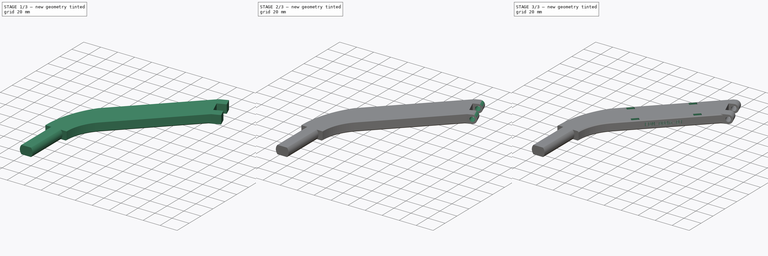
[diagram: build sequence overview — one tinted view per stage of 3, left to right]
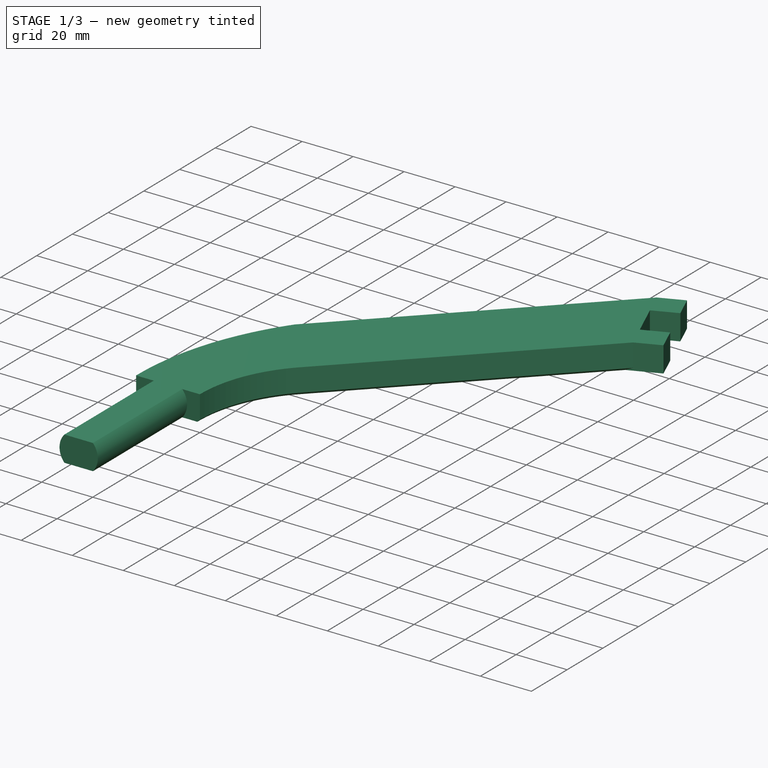
[diagram: stage 1 of 3 — iso view after this stage's code; geometry added in this stage tinted green]
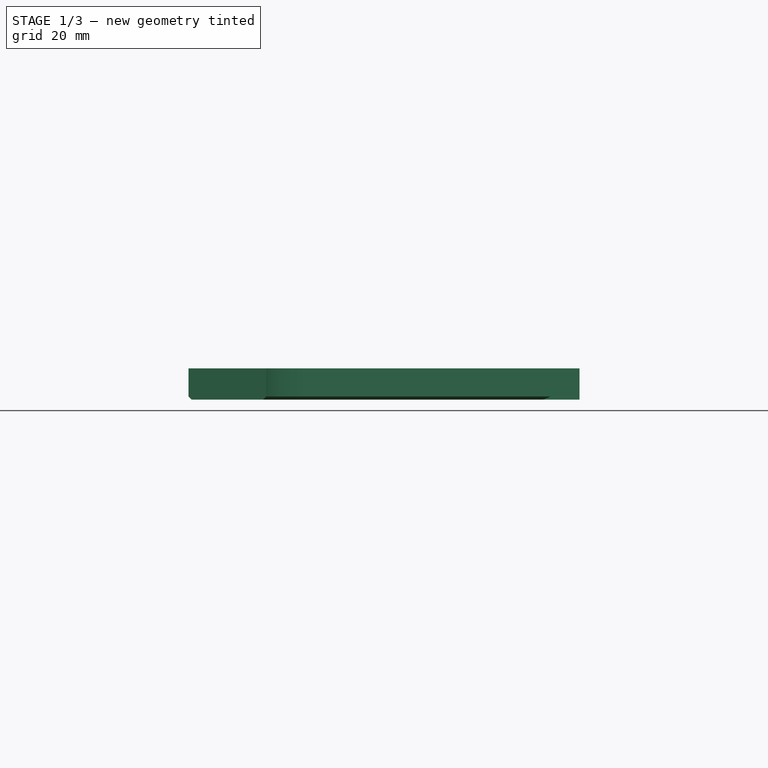
[diagram: stage 1 of 3 — front view after this stage's code; geometry added in this stage tinted green]
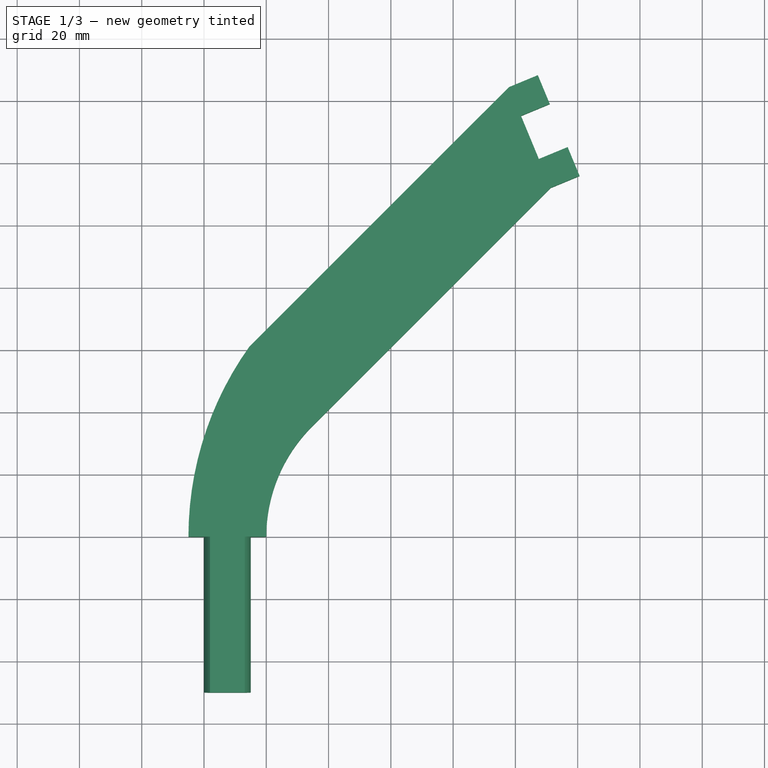
[diagram: stage 1 of 3 — top view after this stage's code; geometry added in this stage tinted green]
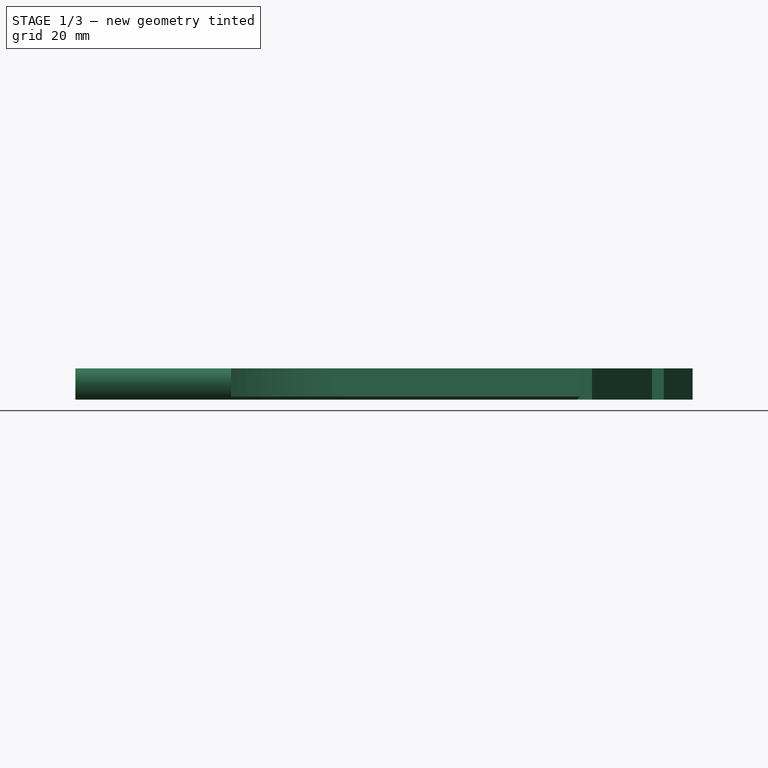
[diagram: stage 1 of 3 — right view after this stage's code; geometry added in this stage tinted green]
FCSTD DOCUMENT  (FreeCAD 0.19R24291 (Git))
Label: FDM-0046_umbilical-swivel-base
License: All rights reserved
LicenseURL: http://en.wikipedia.org/wiki/All_rights_reserved
objects: PartDesign::Plane×7, Sketcher::SketchObject×4, PartDesign::Pocket×4, PartDesign::Chamfer×2, PartDesign::Pad×1, PartDesign::Fillet×1, Part::Part2DObjectPython×1, PartDesign::Body×1
note: 29 computed .brp shape members not serialized (recipe doc carries the construction recipe); baked Part::Feature solids carry a one-line shape summary decoded from their .brp

FEATURE [Sketcher::SketchObject] Sketch
  FullyConstrained = true
  MapMode = 5
  Support = -> [XY_Plane]
  sketch-geometry (15):
    g0: LineSegment StartX=0 StartY=6.1e-15 StartZ=0 EndX=0 EndY=-50 EndZ=0
    g1: LineSegment StartX=0 StartY=-50 StartZ=0 EndX=-25 EndY=-50 EndZ=0
    g2: LineSegment StartX=-25 StartY=-50 StartZ=0 EndX=-25 EndY=1.42e-14 EndZ=0
    g3: ArcOfCircle CenterX=50 CenterY=0 CenterZ=0 NormalX=0 NormalY=0 NormalZ=1 AngleXU=0 Radius=50 StartAngle=2.3562 EndAngle=3.14159
    g4: ArcOfCircle CenterX=80 CenterY=0 CenterZ=0 NormalX=0 NormalY=0 NormalZ=1 AngleXU=0 Radius=105 StartAngle=2.52263 EndAngle=3.14159
    g5: LineSegment StartX=14.6446 StartY=35.3553 StartZ=0 EndX=91.3669 EndY=112.078 EndZ=0
    g6: LineSegment StartX=77.973 StartY=144.413 StartZ=0 EndX=-5.52075 EndY=60.9196 EndZ=0
    g7: LineSegment StartX=-25 StartY=-50 StartZ=0 EndX=77.973 EndY=144.413 EndZ=0
    g8: LineSegment StartX=77.973 StartY=144.413 StartZ=0 EndX=87.2118 EndY=148.24 EndZ=0
    g9: LineSegment StartX=100.606 StartY=115.904 StartZ=0 EndX=91.3669 EndY=112.078 EndZ=0
    g10: LineSegment StartX=91.0386 StartY=139.001 StartZ=0 EndX=81.7998 EndY=135.175 EndZ=0
    g11: LineSegment StartX=81.7998 StartY=135.175 StartZ=0 EndX=87.5401 EndY=121.316 EndZ=0
    g12: LineSegment StartX=87.5401 StartY=121.316 StartZ=0 EndX=96.7789 EndY=125.143 EndZ=0
    g13: LineSegment StartX=87.2118 StartY=148.24 StartZ=0 EndX=91.0386 EndY=139.001 EndZ=0
    g14: LineSegment StartX=96.7789 StartY=125.143 StartZ=0 EndX=100.606 EndY=115.904 EndZ=0
  constraints (45):
    c: Coincident(g-1,g0)
    c: PointOnObject(g0,g-2)
    c: Coincident(g0,g1)
    c: Horizontal(g1)
    c: Coincident(g1,g2)
    c: PointOnObject(g2,g-1)
    c: Vertical(g2)
    c: Coincident(g3,g0)
    c: Coincident(g4,g2)
    c: PointOnObject(g4,g-1)
    c: Coincident(g3,g5)
    c: Coincident(g6,g4)
    c: DistanceX(g1,g1) = 25
    c: DistanceY(g2,g2) = 50
    c: DistanceX(g0,g3) = 50
    c: PointOnObject(g3,g-1)
    c: Tangent(g3,g5)
    c: Parallel(g6,g5)
    c: DistanceX(g0,g4) = 80
    c: Coincident(g7,g1)
    c: Coincident(g6,g7)
    c: Distance(g7) = 220
    c: Angle(g-2,g5) = 2.35619
    c: Coincident(g6,g8)
    c: Coincident(g9,g5)
    c: Parallel(g8,g9)
    c: Angle(g6,g8) = 2.74889
    c: Distance(g8) = 10
    c: Equal(g8,g9)
    c: Coincident(g10,g11)
    c: Coincident(g11,g12)
    c: Parallel(g10,g8)
    c: Parallel(g12,g9)
    c: Perpendicular(g11,g12)
    c: Coincident(g8,g13)
    c: Coincident(g13,g10)
    c: Coincident(g12,g14)
    c: Coincident(g14,g9)
    c: Perpendicular(g8,g13)
    c: Perpendicular(g14,g12)
    c: PointOnObject(g12,g13)
    c: Distance(g8,g9) = 35
    c: Distance(g10) = 10
    c: Distance(g13) = 10
    c: Distance(g14) = 10
FEATURE [PartDesign::Pad] Pad
  Direction = (1,1,1)
  Length = 10
  Length2 = 100
  Profile = -> Sketch
  Type = 0
FEATURE [PartDesign::Plane] DatumPlane
  Length = 141.455
  MapMode = 5
  Placement = pos=(0,-50,0) rot=(1,0,0;1.5708rad)
  ResizeMode = 0
  Support = -> [Pad]
  Width = 65.8497
FEATURE [Sketcher::SketchObject] Sketch001
  FullyConstrained = true
  MapMode = 5
  Placement = pos=(0,-50,0) rot=(1,0,0;1.5708rad)
  Support = -> [DatumPlane]
  sketch-geometry (5):
    g0: Circle CenterX=-12.5 CenterY=5 CenterZ=0 NormalX=0 NormalY=0 NormalZ=1 AngleXU=0 Radius=25
    g1: LineSegment StartX=-18.0902 StartY=10 StartZ=0 EndX=-6.90983 EndY=10 EndZ=0
    g2: ArcOfCircle CenterX=-12.5 CenterY=5 CenterZ=0 NormalX=0 NormalY=0 NormalZ=1 AngleXU=0 Radius=7.5 StartAngle=5.55346 EndAngle=7.01291
    g3: ArcOfCircle CenterX=-12.5 CenterY=5 CenterZ=0 NormalX=0 NormalY=0 NormalZ=1 AngleXU=0 Radius=7.5 StartAngle=2.41186 EndAngle=3.87132
    g4: LineSegment StartX=-18.0902 StartY=4.4e-15 StartZ=0 EndX=-6.90983 EndY=4.4e-15 EndZ=0
  constraints (15):
    c: Horizontal(g1)
    c: Coincident(g2,g0)
    c: Coincident(g2,g1)
    c: Coincident(g3,g0)
    c: Coincident(g3,g1)
    c: DistanceY(g0,g1) = 5
    c: Diameter(g2) = 15
    c: Diameter(g3) = 15
    c: DistanceX(g0,g-1) = 12.5
    c: DistanceY(g-1,g0) = 5
    c: Diameter(g0) = 50
    c: Coincident(g4,g3)
    c: Coincident(g4,g2)
    c: Horizontal(g4)
    c: DistanceY(g2,g0) = 5
FEATURE [PartDesign::Pocket] Pocket
  BaseFeature = -> Pad
  Length = 50
  Length2 = 100
  Profile = -> Sketch001
  Type = 0
FEATURE [PartDesign::Plane] DatumPlane001
  Length = 252.722
  MapMode = 5
  Placement = pos=(126.851,52.5433,0) rot=(0.427192,0.639338,0.639338;2.33414rad)
  ResizeMode = 0
  Support = -> [Pocket]
  Width = 71.5043
FEATURE [PartDesign::Chamfer] Chamfer
  Angle = 45
  Base = -> Pocket [Edge6,Edge18,Edge19]
  BaseFeature = -> Pocket
  ChamferType = 0
  FlipDirection = false
  Size = 1
  Size2 = 1
  SupportTransform = false
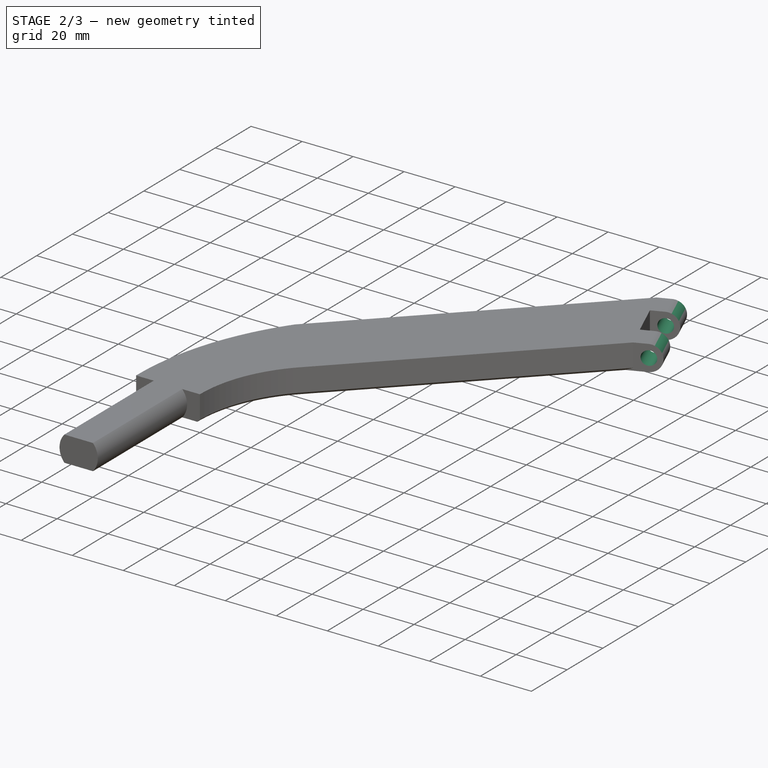
[diagram: stage 2 of 3 — iso view after this stage's code; geometry added in this stage tinted green]
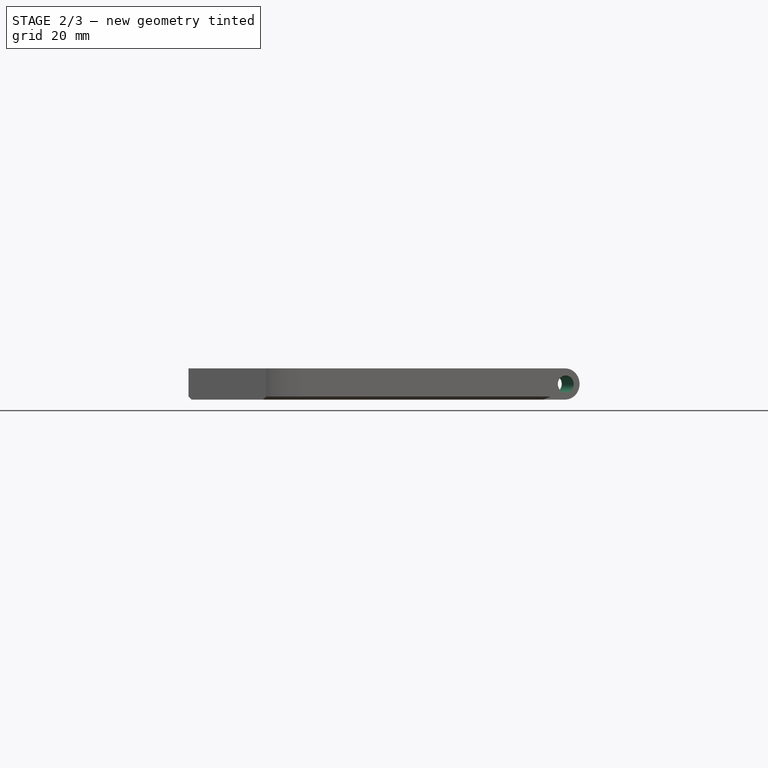
[diagram: stage 2 of 3 — front view after this stage's code; geometry added in this stage tinted green]
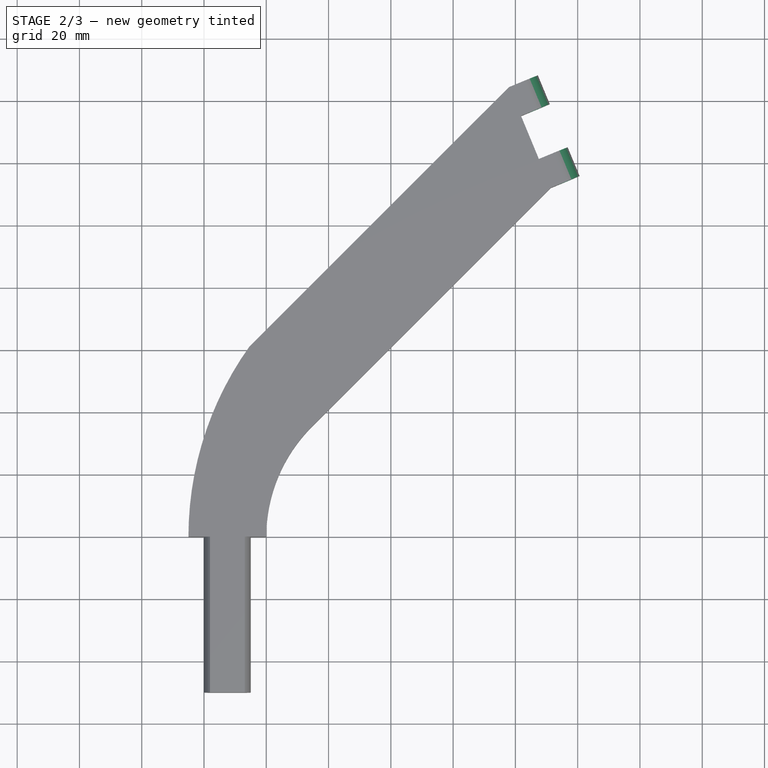
[diagram: stage 2 of 3 — top view after this stage's code; geometry added in this stage tinted green]
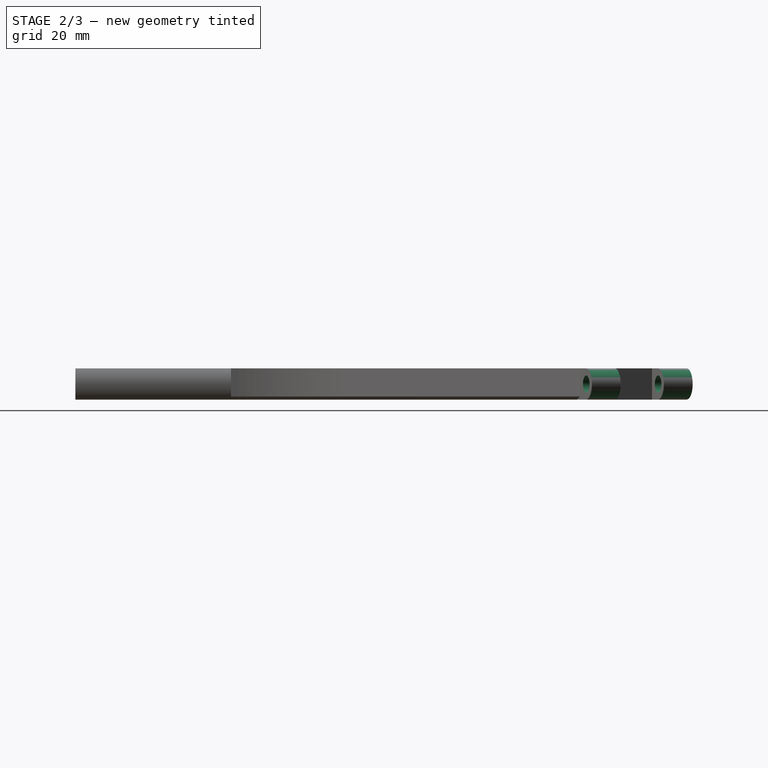
[diagram: stage 2 of 3 — right view after this stage's code; geometry added in this stage tinted green]
FEATURE [PartDesign::Fillet] Fillet
  Base = -> Chamfer [Edge12,Edge16,Edge39,Edge32]
  BaseFeature = -> Chamfer
  Radius = 4.99
  SupportTransform = false
FEATURE [PartDesign::Plane] DatumPlane002
  Length = 211.499
  MapMode = 5
  Placement = pos=(-26.245,63.3611,0) rot=(0.962637,0.19148,0.19148;1.60887rad)
  ResizeMode = 0
  Support = -> [Fillet]
  Width = 69.5912
FEATURE [Sketcher::SketchObject] Sketch002  label="M5Hole"
  FullyConstrained = true
  MapMode = 5
  Placement = pos=(-26.245,63.3611,0) rot=(0.962637,0.19148,0.19148;1.60887rad)
  Support = -> [DatumPlane002]
  sketch-geometry (1):
    g0: Circle CenterX=132.5 CenterY=5 CenterZ=0 NormalX=0 NormalY=0 NormalZ=1 AngleXU=0 Radius=2.75
  constraints (3):
    c: Diameter(g0) = 5.5
    c: DistanceY(g-1,g0) = 5
    c: DistanceX(g-1,g0) = 132.5
FEATURE [PartDesign::Pocket] Pocket001
  BaseFeature = -> Fillet
  Length = 37
  Length2 = 100
  Profile = -> Sketch002
  Type = 0
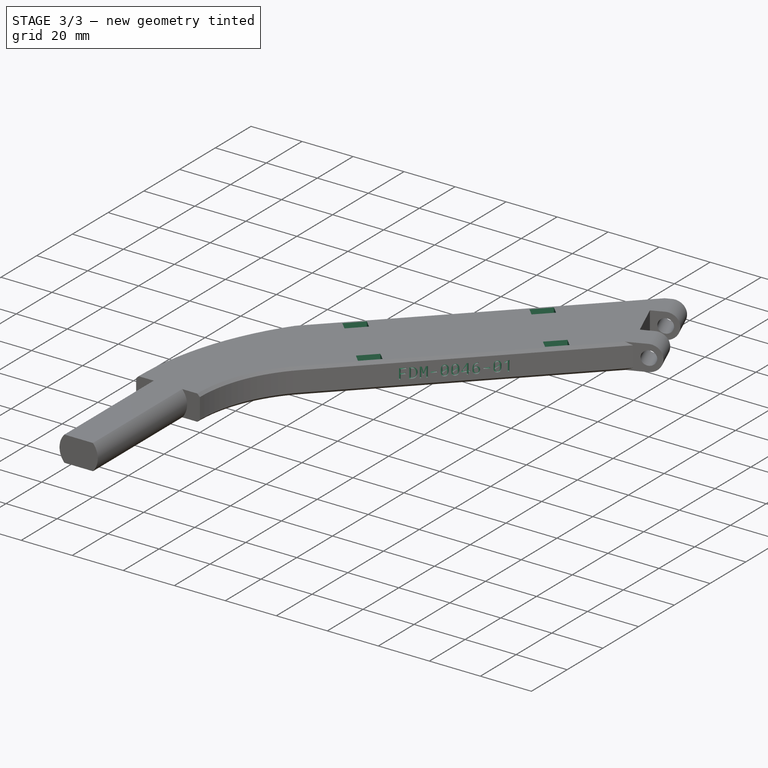
[diagram: stage 3 of 3 — iso view after this stage's code; geometry added in this stage tinted green]
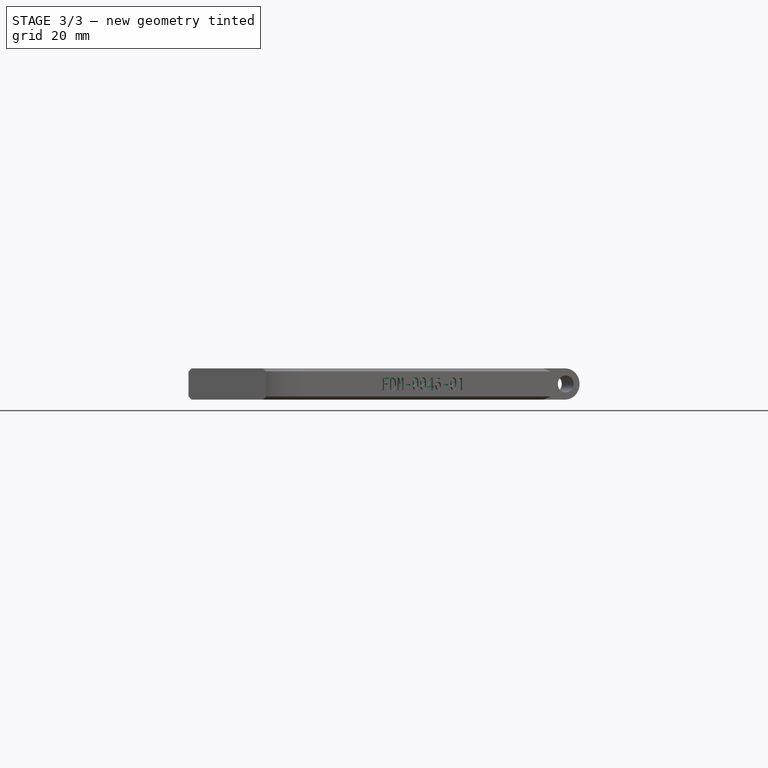
[diagram: stage 3 of 3 — front view after this stage's code; geometry added in this stage tinted green]
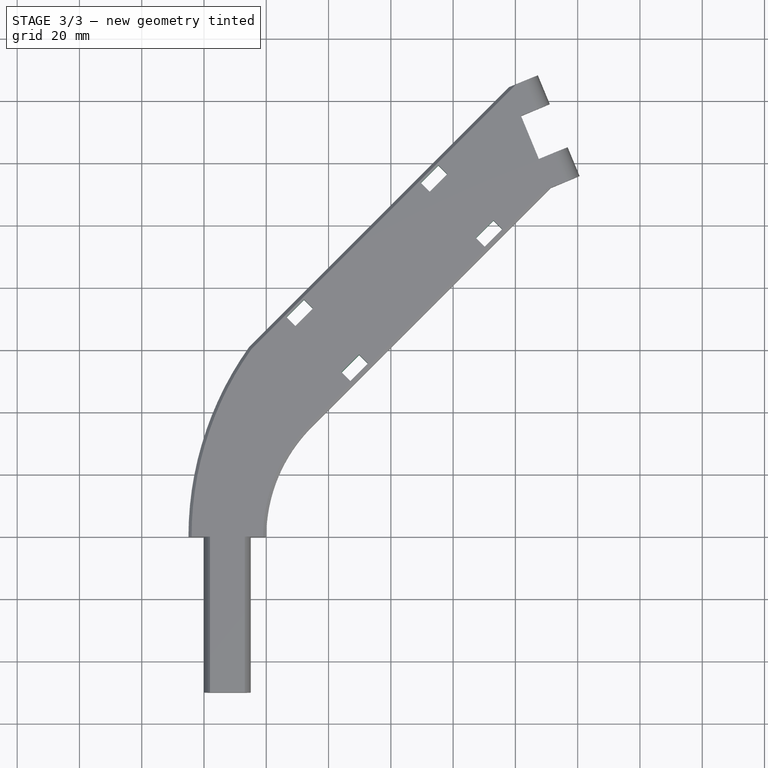
[diagram: stage 3 of 3 — top view after this stage's code; geometry added in this stage tinted green]
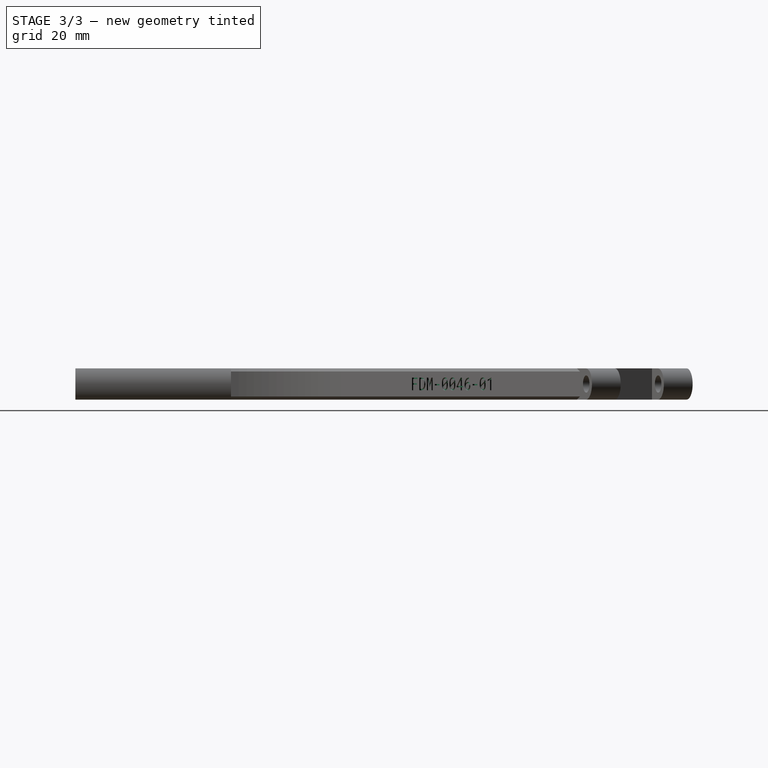
[diagram: stage 3 of 3 — right view after this stage's code; geometry added in this stage tinted green]
FEATURE [PartDesign::Chamfer] Chamfer001
  Angle = 45
  Base = -> Pocket001 [Edge14,Edge3,Edge13,Edge5]
  BaseFeature = -> Pocket001
  ChamferType = 0
  FlipDirection = false
  Size = 1
  Size2 = 1
  SupportTransform = false
FEATURE [PartDesign::Plane] DatumPlane003
  Length = 157.165
  MapMode = 5
  Placement = pos=(0,0,10) rot=(0,0,1;0rad)
  ResizeMode = 0
  Support = -> [Chamfer001]
  Width = 229.8
FEATURE [Sketcher::SketchObject] Sketch003
  FullyConstrained = true
  MapMode = 5
  Placement = pos=(0,0,10) rot=(0,0,1;0rad)
  Support = -> [DatumPlane003]
  sketch-geometry (16):
    g0: LineSegment StartX=6.4939 StartY=70.5061 StartZ=0 EndX=12.1508 EndY=76.163 EndZ=0
    g1: LineSegment StartX=12.1508 StartY=76.163 StartZ=0 EndX=14.9792 EndY=73.3345 EndZ=0
    g2: LineSegment StartX=14.9792 StartY=73.3345 StartZ=0 EndX=9.32233 EndY=67.6777 EndZ=0
    g3: LineSegment StartX=9.32233 StartY=67.6777 StartZ=0 EndX=6.4939 EndY=70.5061 EndZ=0
    g4: LineSegment StartX=24.1716 StartY=52.8284 StartZ=0 EndX=29.8284 EndY=58.4853 EndZ=0
    g5: LineSegment StartX=29.8284 StartY=58.4853 StartZ=0 EndX=32.6569 EndY=55.6569 EndZ=0
    g6: LineSegment StartX=32.6569 StartY=55.6569 StartZ=0 EndX=27 EndY=50 EndZ=0
    g7: LineSegment StartX=27 StartY=50 StartZ=0 EndX=24.1716 EndY=52.8284 EndZ=0
    g8: LineSegment StartX=49.6274 StartY=113.64 StartZ=0 EndX=55.2843 EndY=119.296 EndZ=0
    g9: LineSegment StartX=55.2843 StartY=119.296 StartZ=0 EndX=58.1127 EndY=116.468 EndZ=0
    g10: LineSegment StartX=58.1127 StartY=116.468 StartZ=0 EndX=52.4558 EndY=110.811 EndZ=0
    g11: LineSegment StartX=52.4558 StartY=110.811 StartZ=0 EndX=49.6274 EndY=113.64 EndZ=0
    g12: LineSegment StartX=67.3051 StartY=95.9619 StartZ=0 EndX=72.9619 EndY=101.619 EndZ=0
    g13: LineSegment StartX=72.9619 StartY=101.619 StartZ=0 EndX=75.7904 EndY=98.7904 EndZ=0
    g14: LineSegment StartX=75.7904 StartY=98.7904 StartZ=0 EndX=70.1335 EndY=93.1335 EndZ=0
    g15: LineSegment StartX=70.1335 StartY=93.1335 StartZ=0 EndX=67.3051 EndY=95.9619 EndZ=0
  constraints (48):
    c: Coincident(g0,g1)
    c: Coincident(g1,g2)
    c: Coincident(g2,g3)
    c: Coincident(g3,g0)
    c: Coincident(g4,g5)
    c: Coincident(g5,g6)
    c: Coincident(g6,g7)
    c: Coincident(g7,g4)
    c: Coincident(g8,g9)
    c: Coincident(g9,g10)
    c: Coincident(g10,g11)
    c: Coincident(g11,g8)
    c: Coincident(g12,g13)
    c: Coincident(g13,g14)
    c: Coincident(g14,g15)
    c: Coincident(g15,g12)
    c: Angle(g-1,g6) = 0.785398
    c: Parallel(g4,g6)
    c: Parallel(g6,g2)
    c: Parallel(g6,g0)
    c: Parallel(g6,g14)
    c: Parallel(g6,g12)
    c: Parallel(g6,g10)
    c: Parallel(g6,g8)
    c: Perpendicular(g6,g7)
    c: Parallel(g7,g5)
    c: Parallel(g7,g3)
    c: Parallel(g1,g7)
    c: Parallel(g7,g11)
    c: Parallel(g7,g9)
    c: Parallel(g7,g15)
    c: Parallel(g7,g13)
    c: Distance(g6) = 8
    c: Distance(g5) = 4
    c: Equal(g6,g2)
    c: Equal(g6,g14)
    c: Equal(g6,g10)
    c: Equal(g5,g1)
    c: Equal(g5,g13)
    c: Equal(g5,g9)
    c: PointOnObject(g2,g7)
    c: PointOnObject(g14,g6)
    c: PointOnObject(g10,g15)
    c: PointOnObject(g10,g2)
    c: Distance(g2,g4) = 21
    c: Distance(g5,g14) = 53
    c: DistanceX(g-1,g6) = 27
    c: DistanceY(g-1,g6) = 50
FEATURE [PartDesign::Pocket] Pocket002
  BaseFeature = -> Chamfer001
  Length = 15
  Length2 = 100
  Profile = -> Sketch003
  Type = 0
FEATURE [PartDesign::Plane] DatumPlane005
  Length = 250.394
  MapMode = 5
  Placement = pos=(-10.3553,10.3553,0) rot=(0.862856,0.357407,0.357407;1.71777rad)
  ResizeMode = 0
  Support = -> [Fillet]
  Width = 71.4006
FEATURE [PartDesign::Plane] DatumPlane006
  Length = 250.394
  MapMode = 5
  Placement = pos=(-10.3553,10.3553,0) rot=(0.862856,0.357407,0.357407;1.71777rad)
  ResizeMode = 0
  Support = -> [Pocket002]
  Width = 71.4006
FEATURE [Part::Part2DObjectPython] ShapeString  label="PN"  # Draft 2D object (typed FeaturePython)
  AttachmentOffset = pos=(67,3,0) rot=(0,0,1;0rad)
  FontFile = ../../lib/fonts/RobotoMono-VariableFont_weight.ttf
  MapMode = 5
  Placement = pos=(37.0208,57.7315,3) rot=(0.862856,0.357407,0.357407;1.71777rad)
  Size = 5
  String = FDM-0046-01
  Support = -> [DatumPlane006]
  Tracking = 0
FEATURE [PartDesign::Pocket] Pocket003  label="PartNumber"
  BaseFeature = -> Pocket002
  Length = 0.8
  Length2 = 100
  Profile = -> ShapeString
  Type = 0
FEATURE [PartDesign::Plane] DatumPlane004  label="PrintPlane"
  Length = 157.165
  MapMode = 5
  Placement = pos=(0,0,10) rot=(0,0,1;0rad)
  ResizeMode = 0
  Support = -> [Pocket003]
  Width = 229.8
FEATURE [PartDesign::Body] Body
  Group = -> [Sketch,Pad,DatumPlane,Sketch001,Pocket,DatumPlane001,Chamfer,Fillet,DatumPlane005,DatumPlane002,Sketch002,Pocket001,Chamfer001,DatumPlane003,Sketch003,Pocket002,DatumPlane004,ShapeString,DatumPlane006,Pocket003]
  Origin = -> Origin
  Tip = -> Pocket003
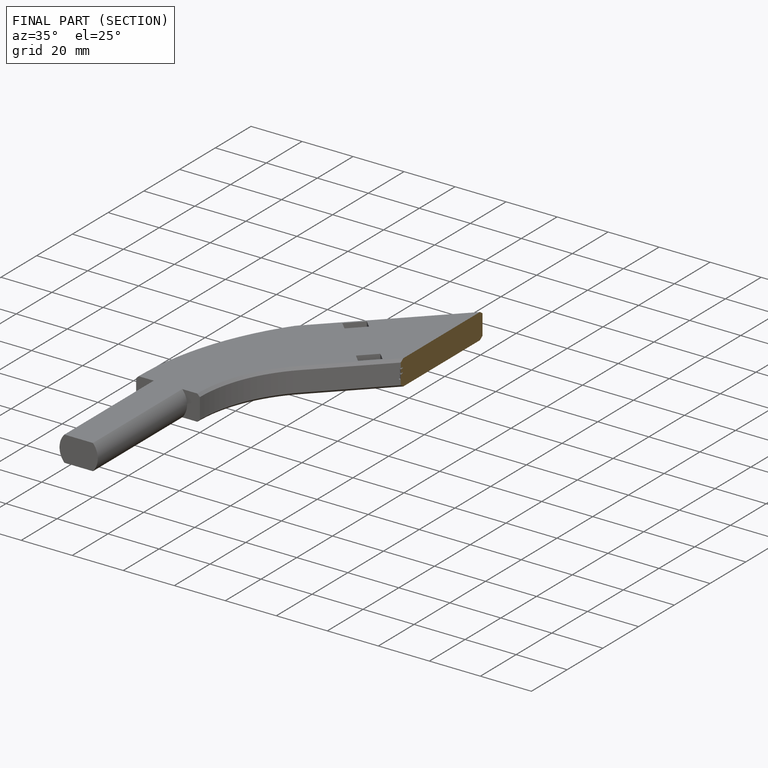
[diagram: finished part — half-section view (interior)]
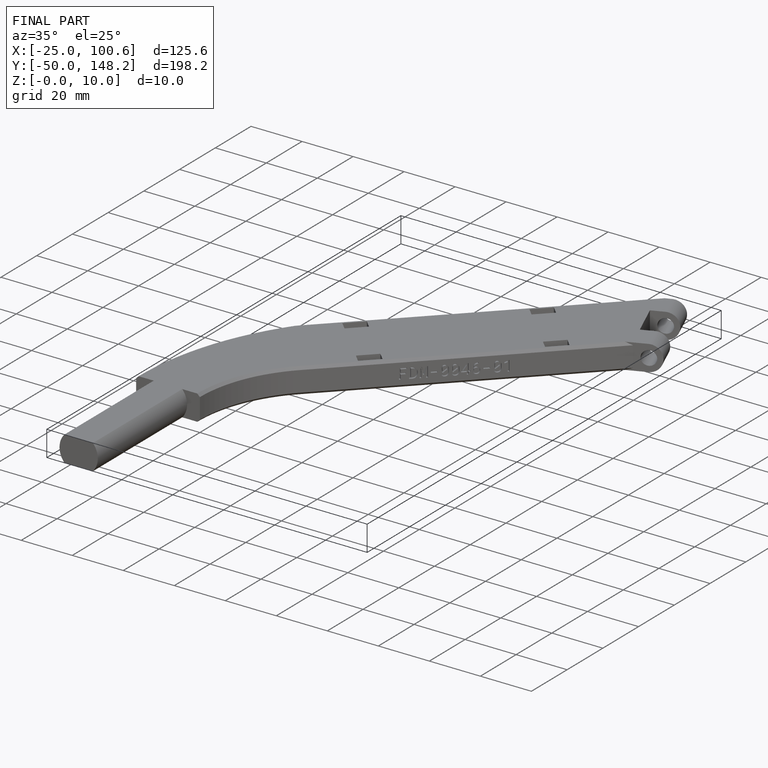
[diagram: finished part — iso view with bounding-box wireframe]
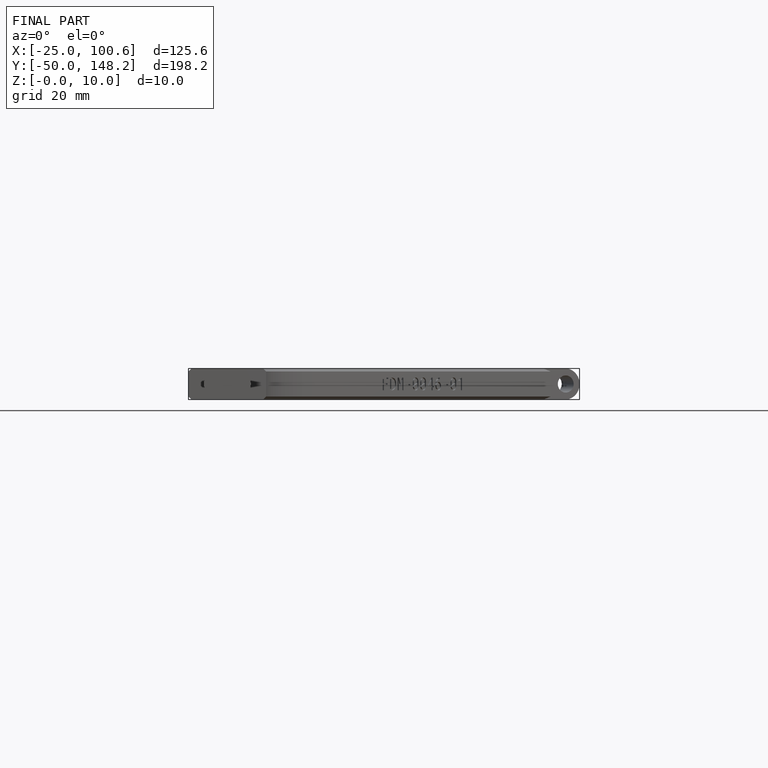
[diagram: finished part — front view with bounding-box wireframe]
